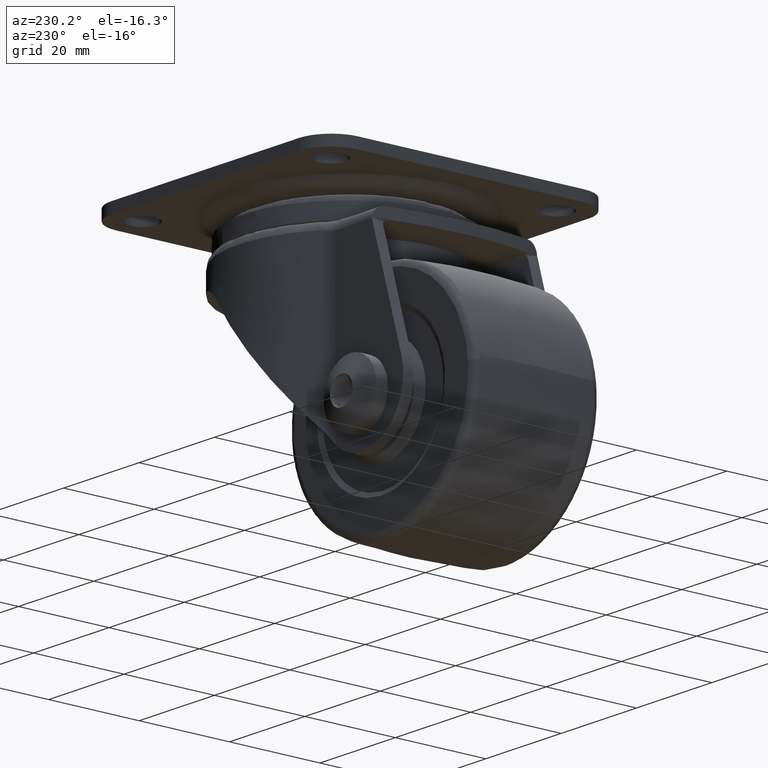
[diagram: clean part render]
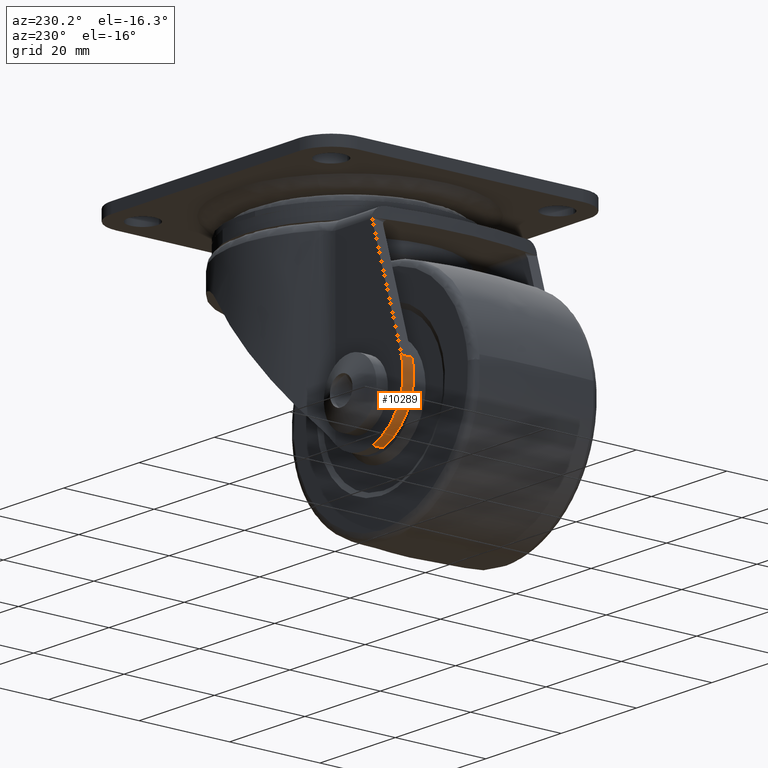
[diagram: same view with one face highlighted and labeled with its STEP entity id]
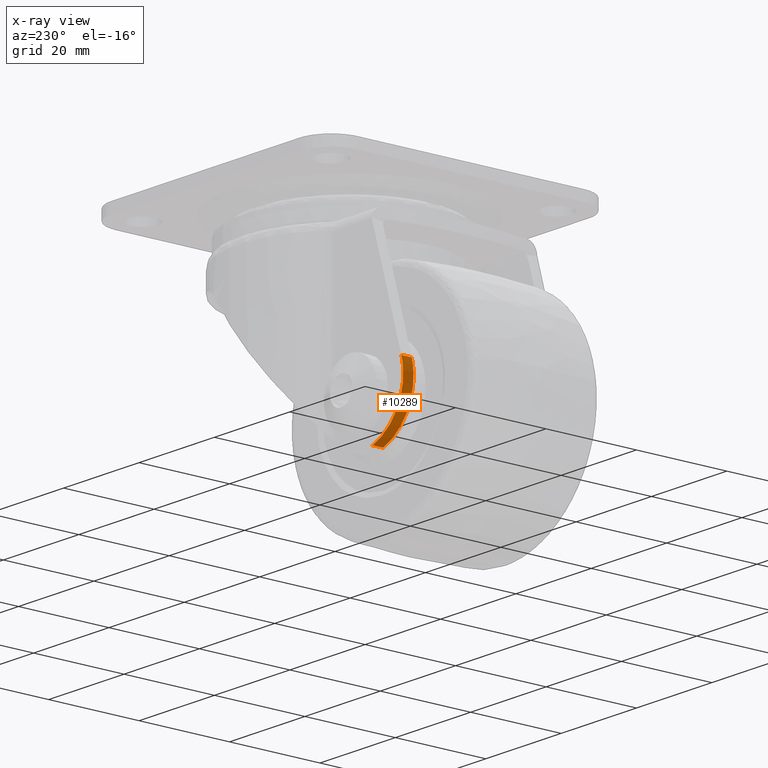
[diagram: x-ray of the same camera — body ghosted, the highlighted face saturated]
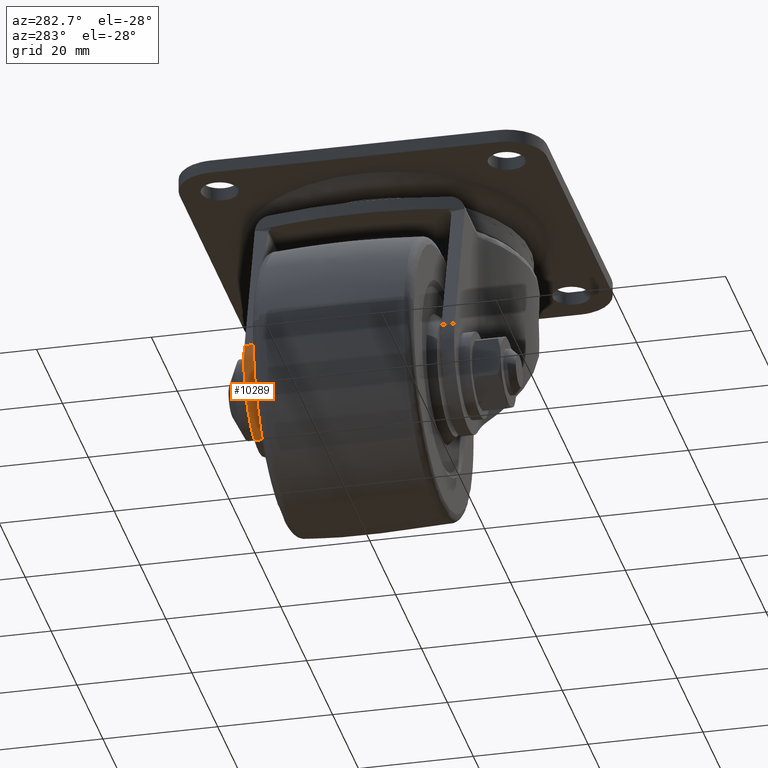
[diagram: same view with one face highlighted and labeled with its STEP entity id]
A machine part, auxiliary view. The second image highlights one B-rep face of the part: STEP entity #10289.
The next image is the same camera in x-ray: the body ghosted, the highlighted face saturated — about 0% of this face is hidden behind the body in this view.
A second angle (auxiliary view) of the same face is appended — the face is thin or edge-on in the first view.
In plain terms, the highlighted face is a freeform B-spline surface patch.
Its self-contained STEP definition (entity closure, byte-faithful):
#9713=CARTESIAN_POINT('',(-27.947204484632000,16.0,-52.555835166314097));
#9714=VERTEX_POINT('',#9713);
#9728=CARTESIAN_POINT('',(-27.947204484632000,18.300003000000000,-52.555835166314097));
#9729=VERTEX_POINT('',#9728);
#9730=CARTESIAN_POINT('',(-27.947204484632000,16.0,-52.555835166314097));
#9731=CARTESIAN_POINT('',(-27.947204484632000,18.300003000000000,-52.555835166314097));
#9732=QUASI_UNIFORM_CURVE('',1,(#9730,#9731),.UNSPECIFIED.,.F.,.U.);
#9733=EDGE_CURVE('',#9714,#9729,#9732,.T.);
#10191=CARTESIAN_POINT('',(-35.569263999999997,18.300003000000000,-38.249955000000213));
#10192=VERTEX_POINT('',#10191);
#10198=CARTESIAN_POINT('',(-35.569263999999997,16.0,-38.249955000000213));
#10199=VERTEX_POINT('',#10198);
#10200=CARTESIAN_POINT('',(-35.569263999999997,16.0,-38.249955000000213));
#10201=CARTESIAN_POINT('',(-35.569263999999997,18.300003000000000,-38.249955000000213));
#10202=QUASI_UNIFORM_CURVE('',1,(#10200,#10201),.UNSPECIFIED.,.F.,.U.);
#10203=EDGE_CURVE('',#10199,#10192,#10202,.T.);
#10245=CARTESIAN_POINT('',(-35.454642445068949,15.942499925000000,-37.890836899240433));
#10246=CARTESIAN_POINT('',(-35.454642445068949,18.358940576875000,-37.890836899240433));
#10247=CARTESIAN_POINT('',(-39.502338747269988,15.942499924999991,-49.890066992400186));
#10248=CARTESIAN_POINT('',(-39.502338747269988,18.358940576875007,-49.890066992400186));
#10249=CARTESIAN_POINT('',(-27.169710325333988,15.942499925000005,-52.766113652296163));
#10250=CARTESIAN_POINT('',(-27.169710325333988,18.358940576875000,-52.766113652296163));
#10258=(BOUNDED_SURFACE()B_SPLINE_SURFACE(1,2,((#10245,#10247,#10249),(#10246,#10248,#10250)),.UNSPECIFIED.,.F.,.F.,.U.)B_SPLINE_SURFACE_WITH_KNOTS((2,2),(3,3),(0.0,2.416440651875000),(0.0,20.363642928945019),.UNSPECIFIED.)GEOMETRIC_REPRESENTATION_ITEM()RATIONAL_B_SPLINE_SURFACE(((1.0,0.671016666402825,0.996249382187936),(1.0,0.671016666402825,0.996249382187936)))REPRESENTATION_ITEM('')SURFACE());
#10259=ORIENTED_EDGE('',*,*,#9733,.F.);
#10260=CARTESIAN_POINT('',(-27.947204484632000,16.0,-52.555835166314097));
#10261=CARTESIAN_POINT('',(-38.864110797093225,15.999999999999998,-49.188849766106649));
#10262=CARTESIAN_POINT('',(-35.569263999999997,16.0,-38.249955000000213));
#10270=(BOUNDED_CURVE()B_SPLINE_CURVE(2,(#10260,#10261,#10262),.UNSPECIFIED.,.F.,.U.)CURVE()GEOMETRIC_REPRESENTATION_ITEM()QUASI_UNIFORM_CURVE()RATIONAL_B_SPLINE_CURVE((1.0,0.709436817143526,1.0))REPRESENTATION_ITEM(''));
#10271=EDGE_CURVE('',#9714,#10199,#10270,.T.);
#10272=ORIENTED_EDGE('',*,*,#10271,.T.);
#10273=ORIENTED_EDGE('',*,*,#10203,.T.);
#10274=CARTESIAN_POINT('',(-27.947204484632000,18.300003000000000,-52.555835166314097));
#10275=CARTESIAN_POINT('',(-38.864110797093225,18.300002999999997,-49.188849766106649));
#10276=CARTESIAN_POINT('',(-35.569263999999997,18.300003000000000,-38.249955000000213));
#10284=(BOUNDED_CURVE()B_SPLINE_CURVE(2,(#10274,#10275,#10276),.UNSPECIFIED.,.F.,.U.)CURVE()GEOMETRIC_REPRESENTATION_ITEM()QUASI_UNIFORM_CURVE()RATIONAL_B_SPLINE_CURVE((1.0,0.709436817143526,1.0))REPRESENTATION_ITEM(''));
#10285=EDGE_CURVE('',#9729,#10192,#10284,.T.);
#10286=ORIENTED_EDGE('',*,*,#10285,.F.);
#10287=EDGE_LOOP('',(#10259,#10272,#10273,#10286));
#10288=FACE_OUTER_BOUND('',#10287,.T.);
#10289=ADVANCED_FACE('',(#10288),#10258,.T.);